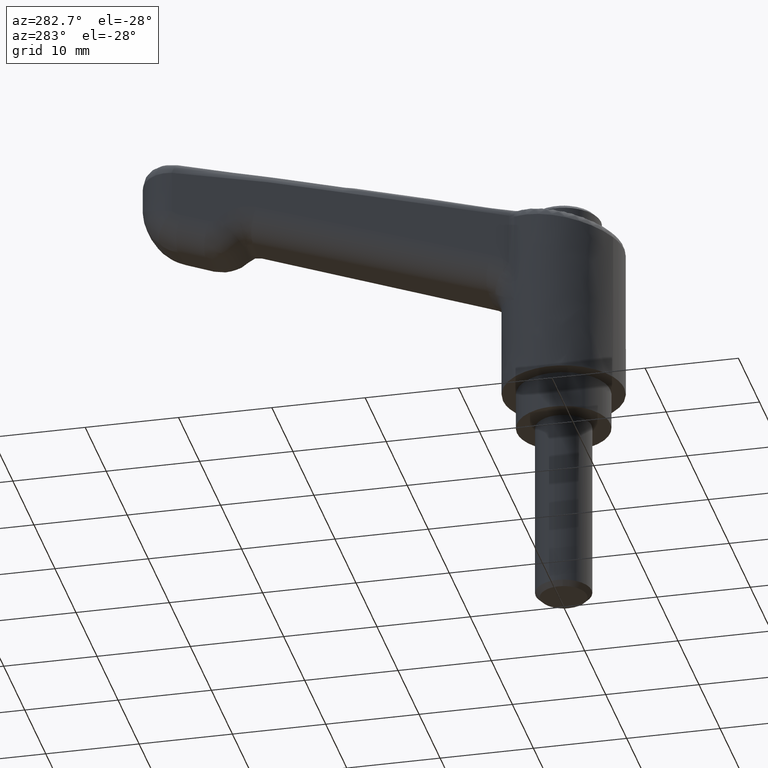
[diagram: clean part render]
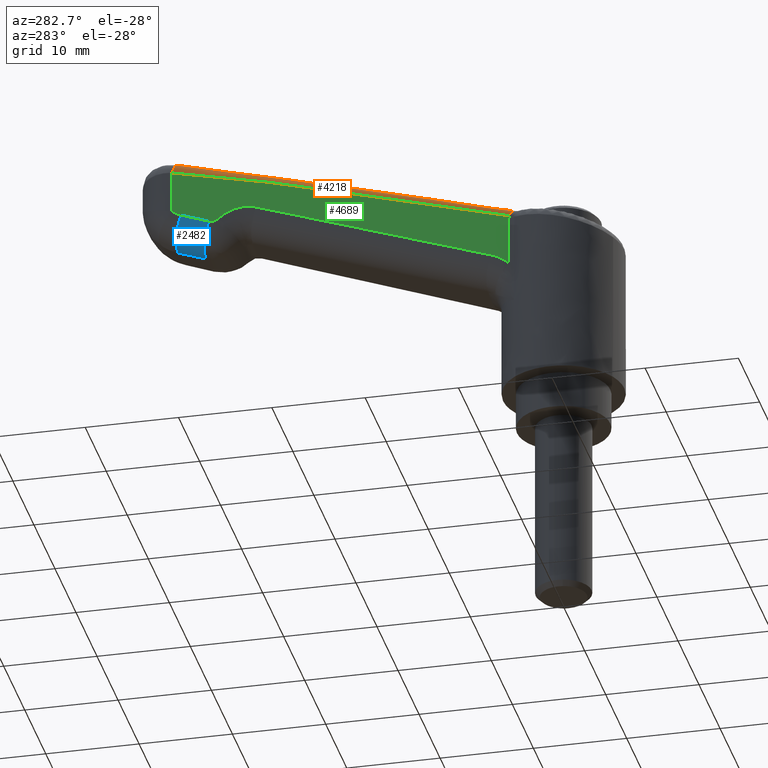
[diagram: same view with three faces highlighted in distinct colors, each labeled with its STEP entity id]
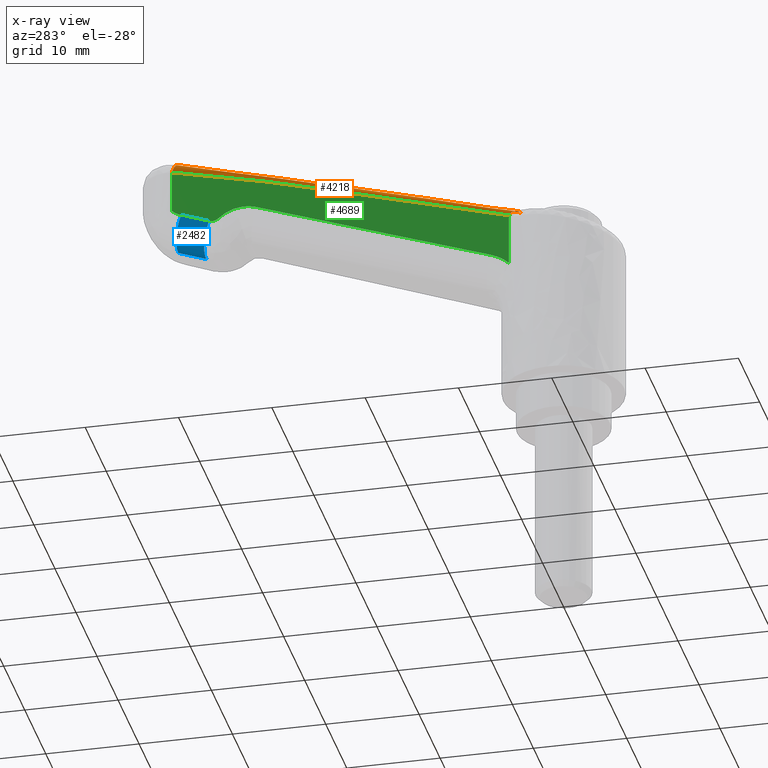
[diagram: x-ray of the same camera — body ghosted, the three highlighted faces saturated]
A machine part, auxiliary view with three faces highlighted in distinct colors.
The next image is the same camera in x-ray (body ghosted, the three faces saturated) — at least one of them is partly hidden behind the body in this view.
Their STEP definitions:

[orange] entity #4218 — the highlighted face is a freeform B-spline surface patch.
#3425=CARTESIAN_POINT('',(4.752992631287901,4.743523573093530,23.264541861390398));
#3426=VERTEX_POINT('',#3425);
#3515=CARTESIAN_POINT('',(3.741556348912950,3.758484842251940,24.024416672665250));
#3516=VERTEX_POINT('',#3515);
#3544=CARTESIAN_POINT('',(4.752992631287890,4.743523573093530,23.264541861390398));
#3545=CARTESIAN_POINT('',(4.747927568367152,4.743627328950940,23.282493115485419));
#3546=CARTESIAN_POINT('',(4.742456834675298,4.743210998795551,23.300512327090651));
#3547=CARTESIAN_POINT('',(4.730917383785175,4.741353267538612,23.335981838759452));
#3548=CARTESIAN_POINT('',(4.724815215802234,4.739912562532211,23.353550520268410));
#3549=CARTESIAN_POINT('',(4.705519030658774,4.734069115936880,23.405762387010320));
#3550=CARTESIAN_POINT('',(4.691228429957866,4.728087868636625,23.440137785056791));
#3551=CARTESIAN_POINT('',(4.645273858237343,4.704525271200292,23.539332831034450));
#3552=CARTESIAN_POINT('',(4.610715698162490,4.681566400330683,23.600208090841669));
#3553=CARTESIAN_POINT('',(4.553441728877298,4.637449599461252,23.684387461812001));
#3554=CARTESIAN_POINT('',(4.533306213286971,4.621002875973786,23.711397774553749));
#3555=CARTESIAN_POINT('',(4.491792089194967,4.585415646278825,23.762254644202461));
#3556=CARTESIAN_POINT('',(4.470554237858694,4.566408278962097,23.785962899186149));
#3557=CARTESIAN_POINT('',(4.405469561013048,4.506101430022103,23.852358616467662));
#3558=CARTESIAN_POINT('',(4.360264315918879,4.461545678164664,23.890358889781119));
#3559=CARTESIAN_POINT('',(4.266214039946129,4.364669067911041,23.954759946997910));
#3560=CARTESIAN_POINT('',(4.218803077110971,4.313828813759880,23.980174040482289));
#3561=CARTESIAN_POINT('',(4.123269012926759,4.208515402608241,24.019226652437400));
#3562=CARTESIAN_POINT('',(4.075013862311837,4.153884391510024,24.032884871400640));
#3563=CARTESIAN_POINT('',(3.977877733418437,4.041750417481160,24.048984105418700));
#3564=CARTESIAN_POINT('',(3.929957609012640,3.985363643142767,24.051290967270560));
#3565=CARTESIAN_POINT('',(3.835075886489217,3.872189208646463,24.045566516876580));
#3566=CARTESIAN_POINT('',(3.788035452895496,3.815363140897969,24.037503021760909));
#3567=CARTESIAN_POINT('',(3.741556348912950,3.758484842251940,24.024416672665250));
#3568=B_SPLINE_CURVE_WITH_KNOTS('',3,(#3544,#3545,#3546,#3547,#3548,#3549,#3550,#3551,#3552,#3553,#3554,#3555,#3556,#3557,#3558,#3559,#3560,#3561,#3562,#3563,#3564,#3565,#3566,#3567),.UNSPECIFIED.,.F.,.U.,(4,2,2,2,2,2,2,2,2,2,2,4),(0.0,0.031250000000000,0.062500000000000,0.125000000000000,0.250000000000001,0.312499999999999,0.374999999999997,0.499999999999997,0.624999999999998,0.749999999999998,0.874999999999999,1.0),.UNSPECIFIED.);
#3569=EDGE_CURVE('',#3426,#3516,#3568,.T.);
#4098=CARTESIAN_POINT('',(41.081942628878487,3.999144946134395,32.970756681665392));
#4099=VERTEX_POINT('',#4098);
#4120=CARTESIAN_POINT('',(40.644689856448700,2.499459725776835,34.414618864979353));
#4121=VERTEX_POINT('',#4120);
#4122=CARTESIAN_POINT('',(41.081942628878487,3.999144946134395,32.970756681665392));
#4123=CARTESIAN_POINT('',(40.673320296505160,4.007517600194963,34.422679862319313));
#4124=CARTESIAN_POINT('',(40.644689856448643,2.499459725776837,34.414618864979332));
#4132=(BOUNDED_CURVE()B_SPLINE_CURVE(2,(#4122,#4123,#4124),.UNSPECIFIED.,.F.,.U.)CURVE()GEOMETRIC_REPRESENTATION_ITEM()QUASI_UNIFORM_CURVE()RATIONAL_B_SPLINE_CURVE((1.0,0.705141140201318,1.0))REPRESENTATION_ITEM(''));
#4133=EDGE_CURVE('',#4099,#4121,#4132,.T.);
#4150=CARTESIAN_POINT('',(40.644689856448700,2.499459725776835,34.414618864979353));
#4151=CARTESIAN_POINT('',(40.673320296505217,4.007517600194963,34.422679862319328));
#4152=CARTESIAN_POINT('',(41.081942628878551,3.999144946134305,32.970756681665392));
#4153=CARTESIAN_POINT('',(38.594148231963587,2.541475235695460,33.837281927512862));
#4154=CARTESIAN_POINT('',(38.622778672020097,4.049533110113588,33.845342924852851));
#4155=CARTESIAN_POINT('',(39.031401004393402,4.041160456052930,32.393419744198951));
#4156=CARTESIAN_POINT('',(36.547423999486000,2.784565128869835,33.261019789691737));
#4157=CARTESIAN_POINT('',(36.572237047534976,4.091548620032214,33.268005987386367));
#4158=CARTESIAN_POINT('',(36.926376402258498,4.084292319846311,32.009672564153007));
#4159=CARTESIAN_POINT('',(34.498791071004653,2.927117830416335,32.684220252047950));
#4160=CARTESIAN_POINT('',(34.521695423049856,4.133564129950834,32.690669049919961));
#4161=CARTESIAN_POINT('',(34.848593288948500,4.126866006702310,31.529130505396800));
#4162=CARTESIAN_POINT('',(32.450158142523300,3.069670531962835,32.107420714404149));
#4163=CARTESIAN_POINT('',(32.471153798564735,4.175579639869461,32.113332112453485));
#4164=CARTESIAN_POINT('',(32.770810175638452,4.169439693558310,31.048588446640601));
#4165=CARTESIAN_POINT('',(30.401525214041900,3.212223233509335,31.530621176760349));
#4166=CARTESIAN_POINT('',(30.420612174079547,4.217595149788086,31.535995174987008));
#4167=CARTESIAN_POINT('',(30.693027062328451,4.212013380414315,30.568046387884401));
#4168=CARTESIAN_POINT('',(28.350983589556751,3.254238743427960,30.953284239293900));
#4169=CARTESIAN_POINT('',(28.370070549594427,4.259610659706713,30.958658237520524));
#4170=CARTESIAN_POINT('',(28.642485437843298,4.254028890332940,29.990709450417949));
#4171=CARTESIAN_POINT('',(20.074015818463359,3.423833457980428,28.622875937696250));
#4172=CARTESIAN_POINT('',(20.093102778501049,4.429205374259181,28.628249935922867));
#4173=CARTESIAN_POINT('',(20.365517666749909,4.423623604885407,27.660301148820299));
#4174=CARTESIAN_POINT('',(11.797048047369969,3.593428172532896,26.292467636098600));
#4175=CARTESIAN_POINT('',(11.816135007407654,4.598800088811648,26.297841634325220));
#4176=CARTESIAN_POINT('',(12.088549895656520,4.593218319437874,25.329892847222649));
#4177=CARTESIAN_POINT('',(3.520080276276582,3.763022887085363,23.962059334500950));
#4178=CARTESIAN_POINT('',(3.539167236314267,4.768394803364114,23.967433332727577));
#4179=CARTESIAN_POINT('',(3.811582124563120,4.762813033990342,22.999484545624998));
#4187=(BOUNDED_SURFACE()B_SPLINE_SURFACE(2,3,((#4150,#4153,#4156,#4159,#4162,#4165,#4168,#4171,#4174,#4177),(#4151,#4154,#4157,#4160,#4163,#4166,#4169,#4172,#4175,#4178),(#4152,#4155,#4158,#4161,#4164,#4167,#4170,#4173,#4176,#4179)),.UNSPECIFIED.,.F.,.F.,.U.)B_SPLINE_SURFACE_WITH_KNOTS((3,3),(4,3,3,4),(0.0,2.495043805187802),(0.0,6.404687682218228,12.809375364436500,38.661761337313159),.UNSPECIFIED.)GEOMETRIC_REPRESENTATION_ITEM()RATIONAL_B_SPLINE_SURFACE(((1.0,1.0,1.0,1.0,1.0,1.0,1.0,1.0,1.0,1.0),(0.705141140201318,0.705141140201318,0.705141140201318,0.705141140201318,0.705141140201318,0.705141140201318,0.705141140201318,0.705141140201318,0.705141140201318,0.705141140201318),(1.0,1.0,1.0,1.0,1.0,1.0,1.0,1.0,1.0,1.0)))REPRESENTATION_ITEM('')SURFACE());
#4188=CARTESIAN_POINT('',(4.752992631287919,4.743523573093528,23.264541861390398));
#4189=CARTESIAN_POINT('',(12.716156900139710,4.580358678839998,25.506597724399580));
#4190=CARTESIAN_POINT('',(20.679321168991510,4.417193784586469,27.748653587408761));
#4191=CARTESIAN_POINT('',(28.642485437843298,4.254028890332940,29.990709450417949));
#4192=CARTESIAN_POINT('',(30.693027062328451,4.212013380414315,30.568046387884401));
#4193=CARTESIAN_POINT('',(32.770810175638452,4.169439693558310,31.048588446640601));
#4194=CARTESIAN_POINT('',(34.848593288948500,4.126866006702310,31.529130505396800));
#4195=CARTESIAN_POINT('',(36.926376402258498,4.084292319846311,32.009672564153007));
#4196=CARTESIAN_POINT('',(39.031401004393402,4.041160456052930,32.393419744198951));
#4197=CARTESIAN_POINT('',(41.081942628878487,3.999144946134395,32.970756681665392));
#4198=B_SPLINE_CURVE_WITH_KNOTS('',3,(#4188,#4189,#4190,#4191,#4192,#4193,#4194,#4195,#4196,#4197),.UNSPECIFIED.,.F.,.U.,(4,3,3,4),(0.0,0.215746907867472,0.271302463423027,0.326858018978583),.UNSPECIFIED.);
#4199=EDGE_CURVE('',#3426,#4099,#4198,.T.);
#4200=ORIENTED_EDGE('',*,*,#4199,.F.);
#4201=ORIENTED_EDGE('',*,*,#3569,.T.);
#4202=CARTESIAN_POINT('',(40.644689856448700,2.499459725776835,34.414618864979353));
#4203=CARTESIAN_POINT('',(38.594148231963587,2.541475235695460,33.837281927512862));
#4204=CARTESIAN_POINT('',(36.547423999486000,2.784565128869835,33.261019789691737));
#4205=CARTESIAN_POINT('',(34.498791071004653,2.927117830416335,32.684220252047950));
#4206=CARTESIAN_POINT('',(32.450158142523300,3.069670531962835,32.107420714404149));
#4207=CARTESIAN_POINT('',(30.401525214041900,3.212223233509335,31.530621176760349));
#4208=CARTESIAN_POINT('',(28.350983589556751,3.254238743427960,30.953284239293900));
#4209=CARTESIAN_POINT('',(20.147841179105150,3.422320779507944,28.643661717956132));
#4210=CARTESIAN_POINT('',(11.944698768653540,3.590402815587928,26.334039196618360));
#4211=CARTESIAN_POINT('',(3.741556348912950,3.758484842251940,24.024416672665250));
#4212=B_SPLINE_CURVE_WITH_KNOTS('',3,(#4202,#4203,#4204,#4205,#4206,#4207,#4208,#4209,#4210,#4211),.UNSPECIFIED.,.F.,.U.,(4,3,3,4),(0.0,0.055555555555555,0.111111111111111,0.333359773841089),.UNSPECIFIED.);
#4213=EDGE_CURVE('',#4121,#3516,#4212,.T.);
#4214=ORIENTED_EDGE('',*,*,#4213,.F.);
#4215=ORIENTED_EDGE('',*,*,#4133,.F.);
#4216=EDGE_LOOP('',(#4200,#4201,#4214,#4215));
#4217=FACE_OUTER_BOUND('',#4216,.T.);
#4218=ADVANCED_FACE('',(#4217),#4187,.T.);

[blue] entity #2482 — the highlighted face is a freeform B-spline surface patch.
#2391=CARTESIAN_POINT('',(37.084758577035153,4.081047075879730,26.750438415669301));
#2392=VERTEX_POINT('',#2391);
#2393=CARTESIAN_POINT('',(38.049362425790513,1.081676635164896,23.931360695419151));
#2394=VERTEX_POINT('',#2393);
#2395=CARTESIAN_POINT('',(37.084758577035117,4.081047075879729,26.750438415669290));
#2396=CARTESIAN_POINT('',(38.103252709150048,4.060178174805501,23.950975162930682));
#2397=CARTESIAN_POINT('',(38.049362425790513,1.081676635164896,23.931360695419151));
#2405=(BOUNDED_CURVE()B_SPLINE_CURVE(2,(#2395,#2396,#2397),.UNSPECIFIED.,.F.,.U.)CURVE()GEOMETRIC_REPRESENTATION_ITEM()QUASI_UNIFORM_CURVE()RATIONAL_B_SPLINE_CURVE((1.0,0.709579632629246,1.0))REPRESENTATION_ITEM(''));
#2406=EDGE_CURVE('',#2392,#2394,#2405,.T.);
#2438=CARTESIAN_POINT('',(36.975624026524713,4.081631026740805,26.816655972481641));
#2439=CARTESIAN_POINT('',(40.130400405428439,4.016989794075190,27.964901164981828));
#2440=CARTESIAN_POINT('',(38.106653828645570,4.168089685617912,23.714045717675742));
#2441=CARTESIAN_POINT('',(41.261430207549324,4.103448452952294,24.862290910175933));
#2442=CARTESIAN_POINT('',(37.967980854538951,0.873330874370512,23.909565763111473));
#2443=CARTESIAN_POINT('',(41.122757233442684,0.808689641704888,25.057810955611668));
#2451=(BOUNDED_SURFACE()B_SPLINE_SURFACE(1,2,((#2438,#2440,#2442),(#2439,#2441,#2443)),.UNSPECIFIED.,.F.,.F.,.U.)B_SPLINE_SURFACE_WITH_KNOTS((2,2),(3,3),(0.0,3.357865320698452),(0.0,5.312182774003110),.UNSPECIFIED.)GEOMETRIC_REPRESENTATION_ITEM()RATIONAL_B_SPLINE_SURFACE(((1.0,0.671021109305391,0.996240597805914),(1.0,0.671021109305391,0.996240597805914)))REPRESENTATION_ITEM('')SURFACE());
#2452=CARTESIAN_POINT('',(40.087518717605093,4.019520649416160,27.843354198447798));
#2453=VERTEX_POINT('',#2452);
#2454=CARTESIAN_POINT('',(41.052123999999999,1.020150179335100,25.024277000000001));
#2455=VERTEX_POINT('',#2454);
#2456=CARTESIAN_POINT('',(40.087518717605093,4.019520649416160,27.843354198447798));
#2457=CARTESIAN_POINT('',(41.106014550340511,3.998653184691162,25.043890784784814));
#2458=CARTESIAN_POINT('',(41.052123999999999,1.020150179335100,25.024277000000001));
#2466=(BOUNDED_CURVE()B_SPLINE_CURVE(2,(#2456,#2457,#2458),.UNSPECIFIED.,.F.,.U.)CURVE()GEOMETRIC_REPRESENTATION_ITEM()QUASI_UNIFORM_CURVE()RATIONAL_B_SPLINE_CURVE((1.0,0.709579459285819,1.0))REPRESENTATION_ITEM(''));
#2467=EDGE_CURVE('',#2453,#2455,#2466,.T.);
#2468=ORIENTED_EDGE('',*,*,#2467,.T.);
#2469=CARTESIAN_POINT('',(38.049362425790513,1.081676635164896,23.931360695419151));
#2470=CARTESIAN_POINT('',(41.052123999999999,1.020150179335100,25.024277000000001));
#2471=QUASI_UNIFORM_CURVE('',1,(#2469,#2470),.UNSPECIFIED.,.F.,.U.);
#2472=EDGE_CURVE('',#2394,#2455,#2471,.T.);
#2473=ORIENTED_EDGE('',*,*,#2472,.F.);
#2474=ORIENTED_EDGE('',*,*,#2406,.F.);
#2475=CARTESIAN_POINT('',(40.087518717605093,4.019520649416160,27.843354198447798));
#2476=CARTESIAN_POINT('',(37.084758577035153,4.081047075879730,26.750438415669301));
#2477=QUASI_UNIFORM_CURVE('',1,(#2475,#2476),.UNSPECIFIED.,.F.,.U.);
#2478=EDGE_CURVE('',#2453,#2392,#2477,.T.);
#2479=ORIENTED_EDGE('',*,*,#2478,.F.);
#2480=EDGE_LOOP('',(#2468,#2473,#2474,#2479));
#2481=FACE_OUTER_BOUND('',#2480,.T.);
#2482=ADVANCED_FACE('',(#2481),#2451,.T.);

[green] entity #4689 — the highlighted face is a freeform B-spline surface patch.
#2085=CARTESIAN_POINT('',(4.804073263716750,4.742476933126480,17.698528247989699));
#2086=VERTEX_POINT('',#2085);
#2168=CARTESIAN_POINT('',(6.729902961068190,4.703016765244761,18.880297918210150));
#2169=VERTEX_POINT('',#2168);
#2197=CARTESIAN_POINT('',(6.729902961068190,4.703016765244761,18.880297918210150));
#2198=CARTESIAN_POINT('',(6.369126267411332,4.710409064220662,18.753397257488409));
#2199=CARTESIAN_POINT('',(6.028653220946148,4.717385342336639,18.590091423300262));
#2200=CARTESIAN_POINT('',(5.546472659345413,4.727265201358567,18.293979129071399));
#2201=CARTESIAN_POINT('',(5.390542730385567,4.730460198913646,18.186673971210201));
#2202=CARTESIAN_POINT('',(5.163962860078302,4.735102810736097,18.012600133476809));
#2203=CARTESIAN_POINT('',(5.089598469227130,4.736626533914445,17.952322520027121));
#2204=CARTESIAN_POINT('',(4.944392874896860,4.739601790313034,17.828221955772040));
#2205=CARTESIAN_POINT('',(4.873420914076465,4.741056002745587,17.764304802338270));
#2206=CARTESIAN_POINT('',(4.804073263716750,4.742476933126480,17.698528247989699));
#2207=B_SPLINE_CURVE_WITH_KNOTS('',3,(#2197,#2198,#2199,#2200,#2201,#2202,#2203,#2204,#2205,#2206),.UNSPECIFIED.,.F.,.U.,(4,2,2,2,4),(0.0,0.500000000000000,0.750000000000000,0.875000000000000,1.0),.UNSPECIFIED.);
#2208=EDGE_CURVE('',#2169,#2086,#2207,.T.);
#2227=CARTESIAN_POINT('',(32.033624131454147,4.184544603978870,27.780703603211851));
#2228=VERTEX_POINT('',#2227);
#2250=CARTESIAN_POINT('',(32.033624131454147,4.184544603978870,27.780703603211851));
#2251=CARTESIAN_POINT('',(6.729902961068190,4.703016765244761,18.880297918210150));
#2252=QUASI_UNIFORM_CURVE('',1,(#2250,#2251),.UNSPECIFIED.,.F.,.U.);
#2253=EDGE_CURVE('',#2228,#2169,#2252,.T.);
#2316=CARTESIAN_POINT('',(36.066367309400249,4.101913869265159,26.953569872643950));
#2317=VERTEX_POINT('',#2316);
#2349=CARTESIAN_POINT('',(36.066367309400249,4.101913869265159,26.953569872643950));
#2350=CARTESIAN_POINT('',(34.298195513550162,4.138143633508657,28.577250635467674));
#2351=CARTESIAN_POINT('',(32.033624131454147,4.184544603978870,27.780703603211851));
#2359=(BOUNDED_CURVE()B_SPLINE_CURVE(2,(#2349,#2350,#2351),.UNSPECIFIED.,.F.,.U.)CURVE()GEOMETRIC_REPRESENTATION_ITEM()QUASI_UNIFORM_CURVE()RATIONAL_B_SPLINE_CURVE((1.0,0.857438338275757,1.0))REPRESENTATION_ITEM(''));
#2360=EDGE_CURVE('',#2317,#2228,#2359,.T.);
#2391=CARTESIAN_POINT('',(37.084758577035153,4.081047075879730,26.750438415669301));
#2392=VERTEX_POINT('',#2391);
#2422=CARTESIAN_POINT('',(37.084758577035153,4.081047075879730,26.750438415669301));
#2423=CARTESIAN_POINT('',(36.513857694418938,4.092744810473302,26.542647398137458));
#2424=CARTESIAN_POINT('',(36.066367309400249,4.101913869265159,26.953569872643950));
#2432=(BOUNDED_CURVE()B_SPLINE_CURVE(2,(#2422,#2423,#2424),.UNSPECIFIED.,.F.,.U.)CURVE()GEOMETRIC_REPRESENTATION_ITEM()QUASI_UNIFORM_CURVE()RATIONAL_B_SPLINE_CURVE((1.0,0.854636887396126,1.0))REPRESENTATION_ITEM(''));
#2433=EDGE_CURVE('',#2392,#2317,#2432,.T.);
#2452=CARTESIAN_POINT('',(40.087518717605093,4.019520649416160,27.843354198447798));
#2453=VERTEX_POINT('',#2452);
#2475=CARTESIAN_POINT('',(40.087518717605093,4.019520649416160,27.843354198447798));
#2476=CARTESIAN_POINT('',(37.084758577035153,4.081047075879730,26.750438415669301));
#2477=QUASI_UNIFORM_CURVE('',1,(#2475,#2476),.UNSPECIFIED.,.F.,.U.);
#2478=EDGE_CURVE('',#2453,#2392,#2477,.T.);
#2531=CARTESIAN_POINT('',(41.081942628878487,3.999144946134395,28.444855264174748));
#2532=VERTEX_POINT('',#2531);
#2562=CARTESIAN_POINT('',(41.081942628878487,3.999144946134395,28.444855264174748));
#2563=CARTESIAN_POINT('',(40.644110257266000,4.008116112645973,28.045936454825277));
#2564=CARTESIAN_POINT('',(40.087518717605093,4.019520649416160,27.843354198447798));
#2572=(BOUNDED_CURVE()B_SPLINE_CURVE(2,(#2562,#2563,#2564),.UNSPECIFIED.,.F.,.U.)CURVE()GEOMETRIC_REPRESENTATION_ITEM()QUASI_UNIFORM_CURVE()RATIONAL_B_SPLINE_CURVE((1.0,0.981061155213343,1.0))REPRESENTATION_ITEM(''));
#2573=EDGE_CURVE('',#2532,#2453,#2572,.T.);
#3326=CARTESIAN_POINT('',(4.804073263716750,4.742476933126480,22.927593921454701));
#3327=VERTEX_POINT('',#3326);
#3328=CARTESIAN_POINT('',(4.804073263716750,4.742476933126480,17.698528247989699));
#3329=CARTESIAN_POINT('',(4.804073263716750,4.742476933126480,22.927593921454701));
#3330=QUASI_UNIFORM_CURVE('',1,(#3328,#3329),.UNSPECIFIED.,.F.,.U.);
#3331=EDGE_CURVE('',#2086,#3327,#3330,.T.);
#3425=CARTESIAN_POINT('',(4.752992631287901,4.743523573093530,23.264541861390398));
#3426=VERTEX_POINT('',#3425);
#3440=CARTESIAN_POINT('',(4.804073263716750,4.742476933126480,22.927593921454701));
#3441=CARTESIAN_POINT('',(4.803021806800629,4.742498477433571,22.984797280923530));
#3442=CARTESIAN_POINT('',(4.798487393341230,4.742591387370809,23.041512130019441));
#3443=CARTESIAN_POINT('',(4.781524174461214,4.742938962997918,23.153837021277759));
#3444=CARTESIAN_POINT('',(4.769238112481975,4.743190703880799,23.209466683805552));
#3445=CARTESIAN_POINT('',(4.752992631287901,4.743523573093530,23.264541861390398));
#3446=B_SPLINE_CURVE_WITH_KNOTS('',3,(#3440,#3441,#3442,#3443,#3444,#3445),.UNSPECIFIED.,.F.,.U.,(4,2,4),(0.0,0.500000000000000,1.0),.UNSPECIFIED.);
#3447=EDGE_CURVE('',#3327,#3426,#3446,.T.);
#4098=CARTESIAN_POINT('',(41.081942628878487,3.999144946134395,32.970756681665392));
#4099=VERTEX_POINT('',#4098);
#4188=CARTESIAN_POINT('',(4.752992631287919,4.743523573093528,23.264541861390398));
#4189=CARTESIAN_POINT('',(12.716156900139710,4.580358678839998,25.506597724399580));
#4190=CARTESIAN_POINT('',(20.679321168991510,4.417193784586469,27.748653587408761));
#4191=CARTESIAN_POINT('',(28.642485437843298,4.254028890332940,29.990709450417949));
#4192=CARTESIAN_POINT('',(30.693027062328451,4.212013380414315,30.568046387884401));
#4193=CARTESIAN_POINT('',(32.770810175638452,4.169439693558310,31.048588446640601));
#4194=CARTESIAN_POINT('',(34.848593288948500,4.126866006702310,31.529130505396800));
#4195=CARTESIAN_POINT('',(36.926376402258498,4.084292319846311,32.009672564153007));
#4196=CARTESIAN_POINT('',(39.031401004393402,4.041160456052930,32.393419744198951));
#4197=CARTESIAN_POINT('',(41.081942628878487,3.999144946134395,32.970756681665392));
#4198=B_SPLINE_CURVE_WITH_KNOTS('',3,(#4188,#4189,#4190,#4191,#4192,#4193,#4194,#4195,#4196,#4197),.UNSPECIFIED.,.F.,.U.,(4,3,3,4),(0.0,0.215746907867472,0.271302463423027,0.326858018978583),.UNSPECIFIED.);
#4199=EDGE_CURVE('',#3426,#4099,#4198,.T.);
#4645=CARTESIAN_POINT('',(41.081942628878487,3.999144946134395,32.970756681665392));
#4646=CARTESIAN_POINT('',(41.081942628878487,3.999144946134395,28.444855264174748));
#4647=QUASI_UNIFORM_CURVE('',1,(#4645,#4646),.UNSPECIFIED.,.F.,.U.);
#4648=EDGE_CURVE('',#4099,#2532,#4647,.T.);
#4672=CARTESIAN_POINT('',(2.938361649320806,4.780705284067486,16.935680467328140));
#4673=CARTESIAN_POINT('',(42.896574585263963,3.961963215194746,16.935680467328140));
#4674=CARTESIAN_POINT('',(2.938361649320806,4.780705284067486,33.733604871960040));
#4675=CARTESIAN_POINT('',(42.896574585263963,3.961963215194746,33.733604871960040));
#4676=B_SPLINE_SURFACE_WITH_KNOTS('',1,1,((#4672,#4674),(#4673,#4675)),.UNSPECIFIED.,.F.,.F.,.U.,(2,2),(2,2),(0.0,39.966600050661263),(0.0,16.797924404631900),.UNSPECIFIED.);
#4677=ORIENTED_EDGE('',*,*,#2253,.T.);
#4678=ORIENTED_EDGE('',*,*,#2208,.T.);
#4679=ORIENTED_EDGE('',*,*,#3331,.T.);
#4680=ORIENTED_EDGE('',*,*,#3447,.T.);
#4681=ORIENTED_EDGE('',*,*,#4199,.T.);
#4682=ORIENTED_EDGE('',*,*,#4648,.T.);
#4683=ORIENTED_EDGE('',*,*,#2573,.T.);
#4684=ORIENTED_EDGE('',*,*,#2478,.T.);
#4685=ORIENTED_EDGE('',*,*,#2433,.T.);
#4686=ORIENTED_EDGE('',*,*,#2360,.T.);
#4687=EDGE_LOOP('',(#4677,#4678,#4679,#4680,#4681,#4682,#4683,#4684,#4685,#4686));
#4688=FACE_OUTER_BOUND('',#4687,.T.);
#4689=ADVANCED_FACE('',(#4688),#4676,.F.);